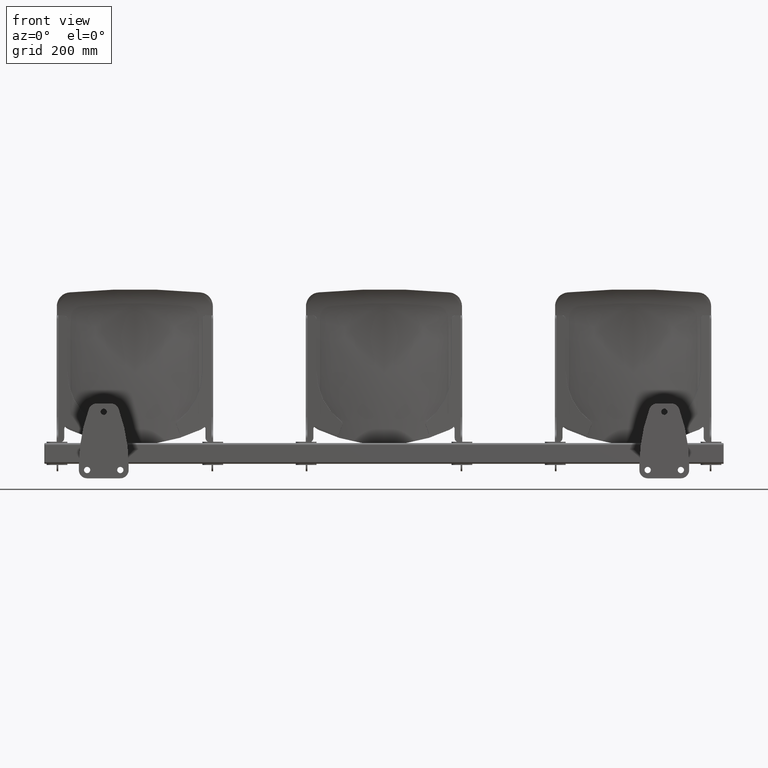
[diagram: clean part render]
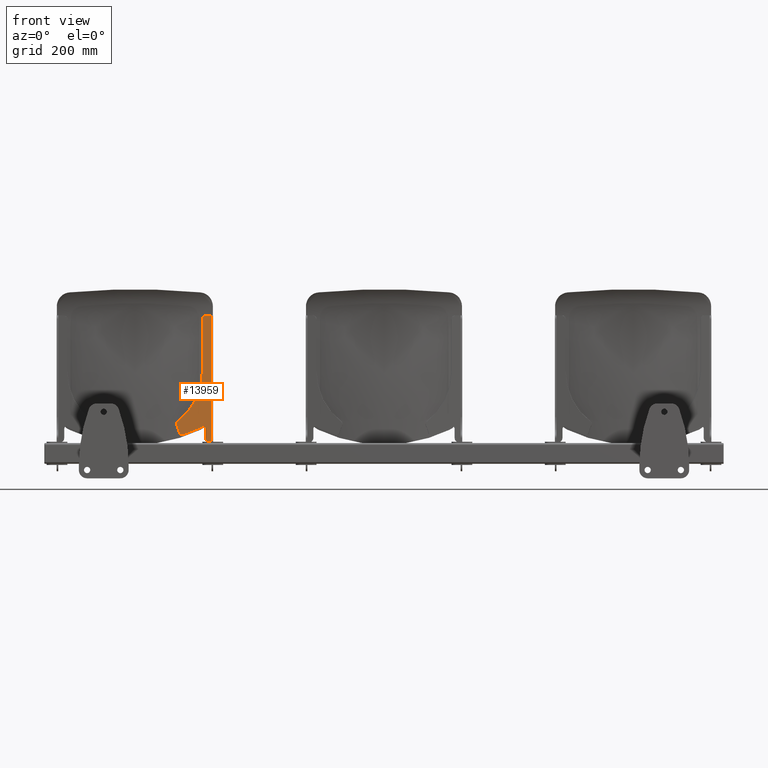
[diagram: same view with one face highlighted and labeled with its STEP entity id]
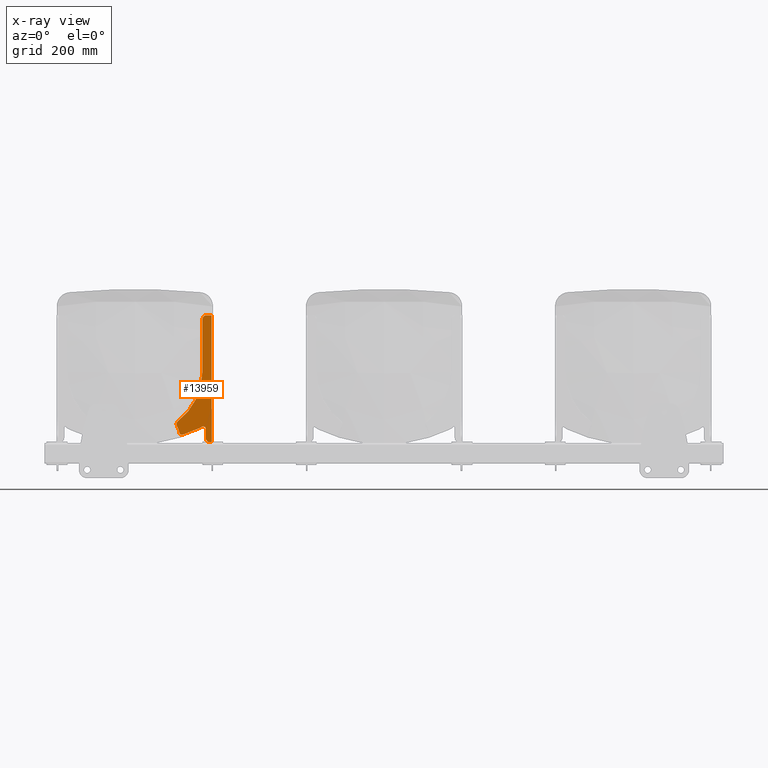
[diagram: x-ray of the same camera — body ghosted, the highlighted face saturated]
A machine part, front view. The second image highlights one B-rep face of the part: STEP entity #13959.
The next image is the same camera in x-ray: the body ghosted, the highlighted face saturated — about 0% of this face is hidden behind the body in this view.
In plain terms, the highlighted planar face has unit normal (0.0958, -0.9954, 0).
Its self-contained STEP definition (entity closure, byte-faithful):
#2336 = AXIS2_PLACEMENT_3D ( 'NONE', #6572, #6577, #6578 ) ;
#3498 = EDGE_CURVE ( 'NONE', #5199, #10279, #5791, .T. ) ;
#3665 = EDGE_CURVE ( 'NONE', #10262, #5208, #5845, .T. ) ;
#4466 = CARTESIAN_POINT ( 'NONE',  ( 184.5000000000000000, 17.61484380720990100, 42.09000911109884400 ) ) ;
#4471 = DIRECTION ( 'NONE',  ( 0.0000000000000000000, 0.0000000000000000000, 1.000000000000000000 ) ) ;
#4524 = EDGE_CURVE ( 'NONE', #5184, #10262, #8858, .T. ) ;
#4525 = EDGE_CURVE ( 'NONE', #5208, #5186, #8859, .T. ) ;
#4526 = EDGE_CURVE ( 'NONE', #5186, #10255, #8861, .T. ) ;
#4527 = EDGE_CURVE ( 'NONE', #10247, #10255, #8862, .T. ) ;
#4528 = EDGE_CURVE ( 'NONE', #10247, #5193, #13900, .T. ) ;
#4529 = EDGE_CURVE ( 'NONE', #5193, #5211, #13885, .T. ) ;
#4530 = EDGE_CURVE ( 'NONE', #5210, #5211, #8863, .T. ) ;
#4531 = EDGE_CURVE ( 'NONE', #5210, #10272, #8856, .T. ) ;
#4532 = EDGE_CURVE ( 'NONE', #5203, #10272, #8865, .T. ) ;
#4533 = EDGE_CURVE ( 'NONE', #5203, #5199, #13881, .T. ) ;
#4534 = EDGE_CURVE ( 'NONE', #10279, #5200, #8867, .T. ) ;
#4535 = EDGE_CURVE ( 'NONE', #5184, #5200, #8869, .T. ) ;
#4915 = CARTESIAN_POINT ( 'NONE',  ( 162.6196988424534600, 15.50801043447425100, 320.0000000000000000 ) ) ;
#4917 = CARTESIAN_POINT ( 'NONE',  ( 101.1457261246025200, 9.588740112551120000, 64.02176152993708100 ) ) ;
#4925 = CARTESIAN_POINT ( 'NONE',  ( 156.1380335318006900, 14.88389705097653600, 58.54220238807209900 ) ) ;
#4933 = CARTESIAN_POINT ( 'NONE',  ( 184.5000000000000000, 17.61484380720990100, 24.28409515809885400 ) ) ;
#4935 = CARTESIAN_POINT ( 'NONE',  ( 172.5736608261252300, 16.46646795967643600, 330.0000000000000000 ) ) ;
#4940 = CARTESIAN_POINT ( 'NONE',  ( 179.8724822042540600, 17.16926452314032800, 24.60114541509068100 ) ) ;
#4948 = CARTESIAN_POINT ( 'NONE',  ( 103.6808314258597100, 9.832842989089707300, 75.04162505709574300 ) ) ;
#4952 = CARTESIAN_POINT ( 'NONE',  ( 170.5828684293859400, 16.27477645463554300, 56.59145301664429400 ) ) ;
#4953 = CARTESIAN_POINT ( 'NONE',  ( 161.1214335537769400, 15.36374389588018900, 61.46111508508809600 ) ) ;
#5184 = VERTEX_POINT ( 'NONE', #4915 ) ;
#5186 = VERTEX_POINT ( 'NONE', #4917 ) ;
#5193 = VERTEX_POINT ( 'NONE', #4925 ) ;
#5199 = VERTEX_POINT ( 'NONE', #4933 ) ;
#5200 = VERTEX_POINT ( 'NONE', #4935 ) ;
#5203 = VERTEX_POINT ( 'NONE', #4940 ) ;
#5208 = VERTEX_POINT ( 'NONE', #4948 ) ;
#5210 = VERTEX_POINT ( 'NONE', #4952 ) ;
#5211 = VERTEX_POINT ( 'NONE', #4953 ) ;
#5791 = LINE ( 'NONE', #4466, #5796 ) ;
#5796 = VECTOR ( 'NONE', #4471, 1000.000000000000000 ) ;
#5845 = CIRCLE ( 'NONE', #13775, 150.0000000000000300 ) ;
#6571 = PLANE ( 'NONE',  #2336 ) ;
#6572 = CARTESIAN_POINT ( 'NONE',  ( 188.5000000000000000, 17.99999999999996100, 24.00000000000002100 ) ) ;
#6577 = DIRECTION ( 'NONE',  ( 0.09584575252022049800, -0.9953961983671791900, -0.0000000000000000000 ) ) ;
#6578 = DIRECTION ( 'NONE',  ( -0.9953961983671790700, -0.09584575252022048400, 0.0000000000000000000 ) ) ;
#6720 = EDGE_LOOP ( 'NONE', ( #13658, #13662, #13642, #7230, #7229, #7224, #7233, #7234, #7228, #7231, #7222, #7227, #7237, #7223 ) ) ;
#6856 = DIRECTION ( 'NONE',  ( -2.750060156608368600E-015, -2.648006749657840600E-016, -1.000000000000000000 ) ) ;
#6861 = CARTESIAN_POINT ( 'NONE',  ( 162.6196988424526400, 15.50801043447419600, 24.00000000000009600 ) ) ;
#6866 = CARTESIAN_POINT ( 'NONE',  ( 120.2635138761708000, 11.42957369879214400, 44.07372596261146900 ) ) ;
#6867 = CARTESIAN_POINT ( 'NONE',  ( 109.0102407228748300, 10.34600673775437600, 68.00000000000000000 ) ) ;
#6868 = DIRECTION ( 'NONE',  ( 0.09584575252022049800, -0.9953961983671791900, -0.0000000000000000000 ) ) ;
#6869 = DIRECTION ( 'NONE',  ( -0.9953961983671790700, -0.09584575252022055300, 0.0000000000000000000 ) ) ;
#6870 = CARTESIAN_POINT ( 'NONE',  ( 156.8707370378486100, 14.95444837418485800, 58.88155333963863600 ) ) ;
#6871 = CARTESIAN_POINT ( 'NONE',  ( 33.57478584118886300, 3.082398586848778000, 29.84122683389196200 ) ) ;
#6872 = DIRECTION ( 'NONE',  ( -0.09584575252022049800, 0.9953961983671791900, 0.0000000000000000000 ) ) ;
#6873 = DIRECTION ( 'NONE',  ( -0.9953961983671791900, -0.09584575252022049800, 0.0000000000000000000 ) ) ;
#6874 = CARTESIAN_POINT ( 'NONE',  ( 129.8152838245827400, 12.34930453572655800, 47.43398999284611500 ) ) ;
#6875 = CARTESIAN_POINT ( 'NONE',  ( 156.1380335318006900, 14.88389705097653600, 58.54220238807209900 ) ) ;
#6876 = CARTESIAN_POINT ( 'NONE',  ( 113.1603538091479600, 10.74561717674377100, 48.05998716912812800 ) ) ;
#6877 = DIRECTION ( 'NONE',  ( -0.09584575252022049800, 0.9953961983671791900, 0.0000000000000000000 ) ) ;
#6878 = DIRECTION ( 'NONE',  ( -0.9953961983671791900, -0.09584575252022037300, 0.0000000000000000000 ) ) ;
#6879 = CARTESIAN_POINT ( 'NONE',  ( 115.0096950149533100, 10.92368848124325400, 42.35488176124789600 ) ) ;
#6880 = CARTESIAN_POINT ( 'NONE',  ( 143.5008606733279400, 13.66707570452646600, 52.87726956516083000 ) ) ;
#6881 = CARTESIAN_POINT ( 'NONE',  ( 151.9526490212497000, 14.48089036011485000, 56.60374593299583500 ) ) ;
#6882 = CARTESIAN_POINT ( 'NONE',  ( 156.1380335318006900, 14.88389705097653600, 58.54220238807209900 ) ) ;
#6883 = DIRECTION ( 'NONE',  ( -2.176688216276588300E-013, -2.095912365680630600E-014, -1.000000000000000000 ) ) ;
#6884 = CARTESIAN_POINT ( 'NONE',  ( 158.3153326412890500, 15.09354710987048700, 59.62261421516016900 ) ) ;
#6885 = CARTESIAN_POINT ( 'NONE',  ( 159.9432653440214800, 15.25029920034622500, 60.63089457596555600 ) ) ;
#6886 = CARTESIAN_POINT ( 'NONE',  ( 160.8630157402462000, 15.33886109057801200, 61.27424498524445800 ) ) ;
#6887 = CARTESIAN_POINT ( 'NONE',  ( 161.1214335537769400, 15.36374389588018900, 61.46111508508809600 ) ) ;
#6888 = CARTESIAN_POINT ( 'NONE',  ( 170.5828684293788300, 16.27477645463487500, 24.00000000000395800 ) ) ;
#6889 = CARTESIAN_POINT ( 'NONE',  ( 164.6104912391828300, 15.69970193951419900, 56.59145301664560200 ) ) ;
#6890 = DIRECTION ( 'NONE',  ( 0.09584575252022049800, -0.9953961983671791900, -0.0000000000000000000 ) ) ;
#6891 = DIRECTION ( 'NONE',  ( -0.9953961983671791900, -0.09584575252022037300, 0.0000000000000000000 ) ) ;
#6892 = CARTESIAN_POINT ( 'NONE',  ( 182.9675193682065500, 17.46728270579328400, 24.39113088401540400 ) ) ;
#6893 = CARTESIAN_POINT ( 'NONE',  ( 181.4249707208374500, 17.31875216473971300, 24.49681722962390400 ) ) ;
#6895 = CARTESIAN_POINT ( 'NONE',  ( 180.5368304130530200, 17.23323397983728000, 34.57884802471357200 ) ) ;
#6896 = DIRECTION ( 'NONE',  ( -0.09584575252022049800, 0.9953961983671791900, 0.0000000000000000000 ) ) ;
#6897 = DIRECTION ( 'NONE',  ( -0.9953961983671793000, -0.09584575252022038700, 0.0000000000000000000 ) ) ;
#6898 = CARTESIAN_POINT ( 'NONE',  ( 179.8724822042540600, 17.16926452314032800, 24.60114541509068100 ) ) ;
#6899 = CARTESIAN_POINT ( 'NONE',  ( 184.5000000000000000, 17.61484380720990100, 24.28409515809885400 ) ) ;
#6900 = CARTESIAN_POINT ( 'NONE',  ( 184.4999999999999400, 17.61484380720984400, 330.0000000000000000 ) ) ;
#6901 = DIRECTION ( 'NONE',  ( -0.9953961983671790700, -0.09584575252022037300, 0.0000000000000000000 ) ) ;
#6905 = CARTESIAN_POINT ( 'NONE',  ( 172.5736608261252300, 16.46646795967643600, 320.0000000000000000 ) ) ;
#6906 = DIRECTION ( 'NONE',  ( -0.09584575252022049800, 0.9953961983671791900, 0.0000000000000000000 ) ) ;
#6907 = DIRECTION ( 'NONE',  ( -0.9953961983671790700, -0.09584575252022054000, 0.0000000000000000000 ) ) ;
#7222 = ORIENTED_EDGE ( 'NONE', *, *, #4533, .T. ) ;
#7223 = ORIENTED_EDGE ( 'NONE', *, *, #4535, .F. ) ;
#7224 = ORIENTED_EDGE ( 'NONE', *, *, #4528, .T. ) ;
#7227 = ORIENTED_EDGE ( 'NONE', *, *, #3498, .T. ) ;
#7228 = ORIENTED_EDGE ( 'NONE', *, *, #4531, .T. ) ;
#7229 = ORIENTED_EDGE ( 'NONE', *, *, #4527, .F. ) ;
#7230 = ORIENTED_EDGE ( 'NONE', *, *, #4526, .T. ) ;
#7231 = ORIENTED_EDGE ( 'NONE', *, *, #4532, .F. ) ;
#7233 = ORIENTED_EDGE ( 'NONE', *, *, #4529, .T. ) ;
#7234 = ORIENTED_EDGE ( 'NONE', *, *, #4530, .F. ) ;
#7237 = ORIENTED_EDGE ( 'NONE', *, *, #4534, .T. ) ;
#8856 = LINE ( 'NONE', #6888, #8866 ) ;
#8858 = LINE ( 'NONE', #6861, #8860 ) ;
#8859 = CIRCLE ( 'NONE', #15200, 8.845926968541688100 ) ;
#8860 = VECTOR ( 'NONE', #6856, 1000.000000000000000 ) ;
#8861 = CIRCLE ( 'NONE', #15201, 76.00311442922111400 ) ;
#8862 = CIRCLE ( 'NONE', #15202, 6.000000000000000900 ) ;
#8863 = CIRCLE ( 'NONE', #15203, 6.000000000000000900 ) ;
#8864 = VECTOR ( 'NONE', #6901, 1000.000000000000100 ) ;
#8865 = CIRCLE ( 'NONE', #15204, 10.00000000000000200 ) ;
#8866 = VECTOR ( 'NONE', #6883, 1000.000000000000000 ) ;
#8867 = LINE ( 'NONE', #6900, #8864 ) ;
#8869 = CIRCLE ( 'NONE', #15205, 10.00000000000000400 ) ;
#9376 = CARTESIAN_POINT ( 'NONE',  ( 115.0096950149533100, 10.92368848124325400, 42.35488176124789600 ) ) ;
#9384 = CARTESIAN_POINT ( 'NONE',  ( 107.3372407343402600, 10.18491516122393900, 46.72695777418037000 ) ) ;
#9391 = CARTESIAN_POINT ( 'NONE',  ( 162.6196988424533700, 15.50801043447425100, 194.4461557886543800 ) ) ;
#9401 = CARTESIAN_POINT ( 'NONE',  ( 170.5828684293811400, 16.27477645463509900, 34.57884802471576100 ) ) ;
#9408 = CARTESIAN_POINT ( 'NONE',  ( 184.4999999999999400, 17.61484380720984400, 330.0000000000000000 ) ) ;
#10247 = VERTEX_POINT ( 'NONE', #9376 ) ;
#10255 = VERTEX_POINT ( 'NONE', #9384 ) ;
#10262 = VERTEX_POINT ( 'NONE', #9391 ) ;
#10272 = VERTEX_POINT ( 'NONE', #9401 ) ;
#10279 = VERTEX_POINT ( 'NONE', #9408 ) ;
#11211 = CARTESIAN_POINT ( 'NONE',  ( 13.31026908737649200, 1.131147556441169900, 194.4461557886543800 ) ) ;
#11212 = DIRECTION ( 'NONE',  ( -0.09584575252022049800, 0.9953961983671791900, 0.0000000000000000000 ) ) ;
#11213 = DIRECTION ( 'NONE',  ( -0.9953961983671791900, -0.09584575252022049800, 0.0000000000000000000 ) ) ;
#13642 = ORIENTED_EDGE ( 'NONE', *, *, #4525, .T. ) ;
#13658 = ORIENTED_EDGE ( 'NONE', *, *, #4524, .T. ) ;
#13662 = ORIENTED_EDGE ( 'NONE', *, *, #3665, .T. ) ;
#13775 = AXIS2_PLACEMENT_3D ( 'NONE', #11211, #11212, #11213 ) ;
#13881 =( BOUNDED_CURVE ( )  B_SPLINE_CURVE ( 3, ( #6898, #6893, #6892, #6899 ),
 .UNSPECIFIED., .F., .F. ) 
 B_SPLINE_CURVE_WITH_KNOTS ( ( 4, 4 ),
 ( 5.321707578490328500, 5.339936677496162100 ),
 .UNSPECIFIED. ) 
 CURVE ( )  GEOMETRIC_REPRESENTATION_ITEM ( )  RATIONAL_B_SPLINE_CURVE ( ( 1.000000000000000000, 0.9999723085208263000, 0.9999723085208263000, 1.000000000000000000 ) ) 
 REPRESENTATION_ITEM ( '' )  );
#13885 = B_SPLINE_CURVE_WITH_KNOTS ( 'NONE', 3,
 ( #6875, #6870, #6884, #6885, #6886, #6887 ),
 .UNSPECIFIED., .F., .F.,
 ( 4, 1, 1, 4 ),
 ( 0.0000000000000000000, 0.09120023808047161800, 0.1824004761609432600, 0.2185380446200244900 ),
 .UNSPECIFIED. ) ;
#13900 = B_SPLINE_CURVE_WITH_KNOTS ( 'NONE', 3,
 ( #6879, #6866, #6874, #6880, #6881, #6882 ),
 .UNSPECIFIED., .F., .F.,
 ( 4, 1, 1, 4 ),
 ( 0.03439965888567482500, 0.08637565307253473900, 0.1295634796088021000, 0.1727513061450694500 ),
 .UNSPECIFIED. ) ;
#13959 = ADVANCED_FACE ( 'NONE', ( #14926 ), #6571, .T. ) ;
#14926 = FACE_OUTER_BOUND ( 'NONE', #6720, .T. ) ;
#15200 = AXIS2_PLACEMENT_3D ( 'NONE', #6867, #6868, #6869 ) ;
#15201 = AXIS2_PLACEMENT_3D ( 'NONE', #6871, #6872, #6873 ) ;
#15202 = AXIS2_PLACEMENT_3D ( 'NONE', #6876, #6877, #6878 ) ;
#15203 = AXIS2_PLACEMENT_3D ( 'NONE', #6889, #6890, #6891 ) ;
#15204 = AXIS2_PLACEMENT_3D ( 'NONE', #6895, #6896, #6897 ) ;
#15205 = AXIS2_PLACEMENT_3D ( 'NONE', #6905, #6906, #6907 ) ;